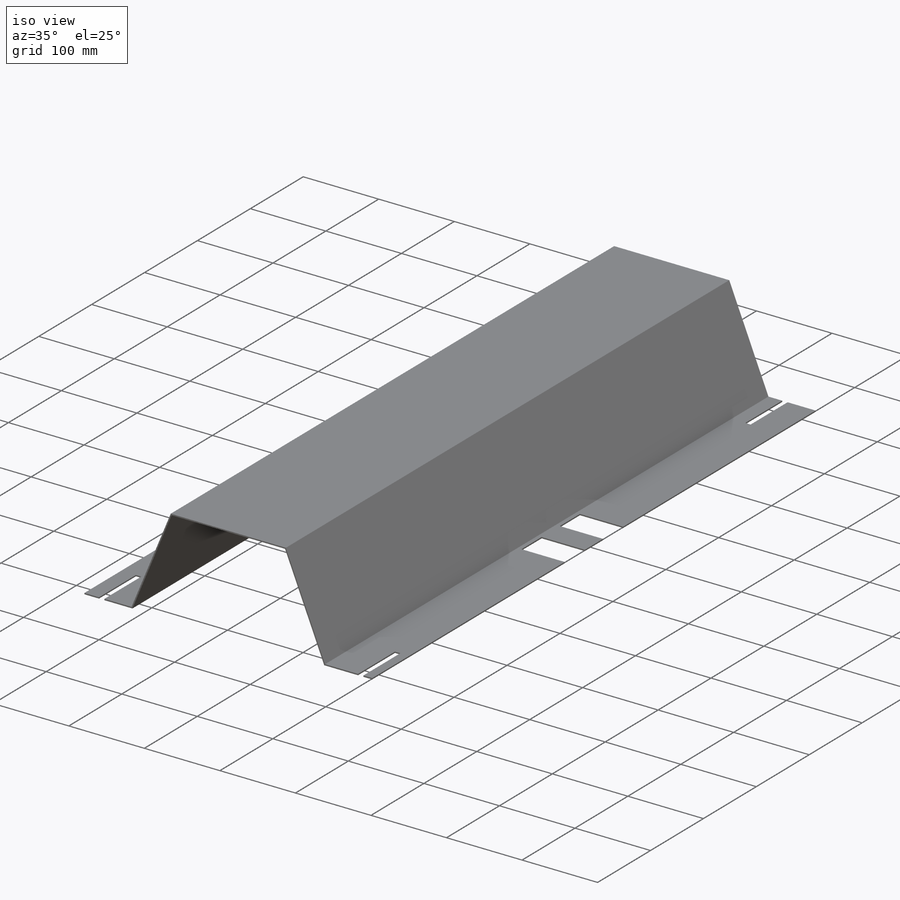
[diagram: iso view]
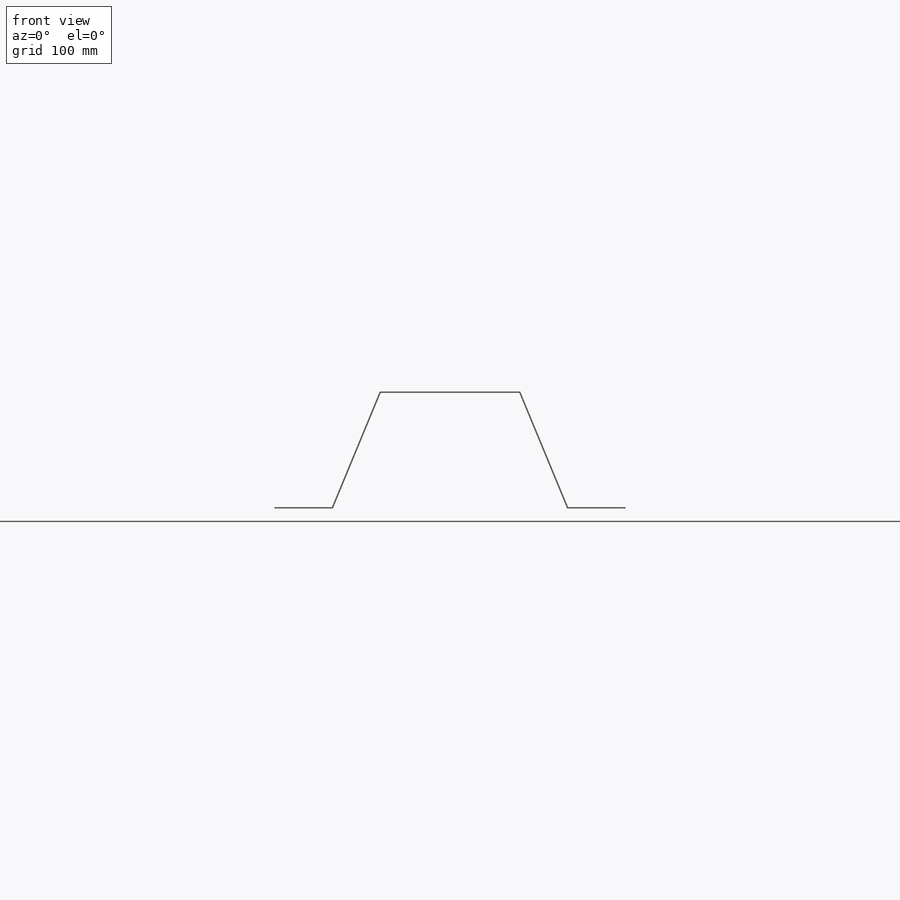
[diagram: front view]
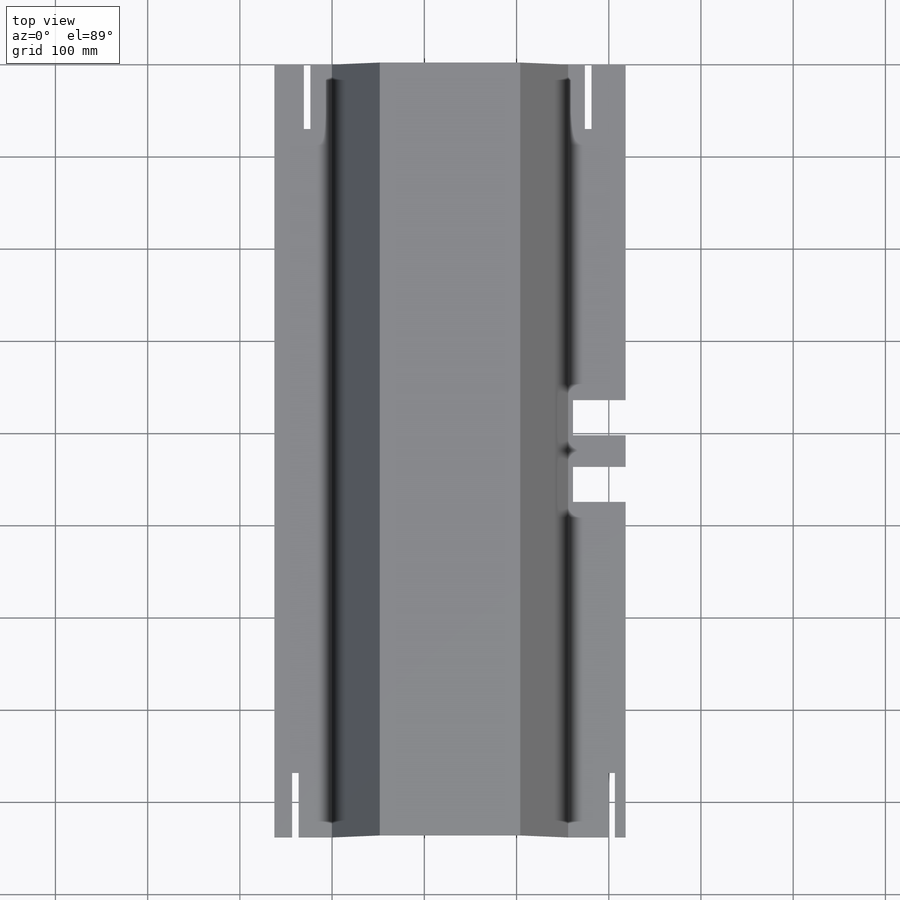
[diagram: top view]
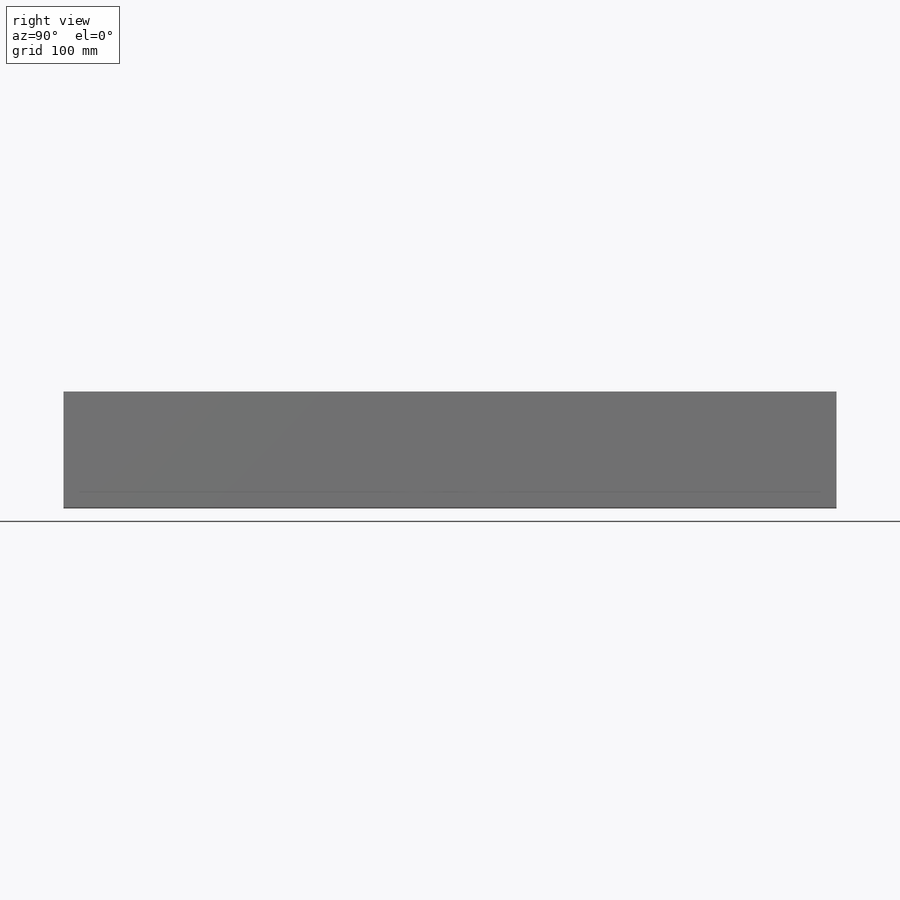
[diagram: right view]
SOLIDWORKS PART (.sldprt)
format: sldprt  version: not decoded by parser v0  size: 238,080 bytes
history: native  units: mm
features: sketch x3, cut_extrude x2, material x1, extrude x1 + 1 further entry (+10 scaffold rows collapsed)
feature tree (18):
  scaffold x10  (default folders/planes/origin — collapsed)
  material  "6061-T6 (SS)"
  "Origin"  ID=392984584
  sketch  "Sketch1"  dims[c1.D1=1.6002mm c1.D2=330.2mm c1.D3=~42.692819mm c2.D3=~151.290304deg c3.D3=177.8mm c3.D1=1.6002mm c3.D2=1.6002mm c4.D3=254.0mm c4.D4=152.4mm c4.D5=1.6002mm c4.D6=1.6002mm c5.D5=1.6002mm c5.D6=~0.765699mm c5.D7=~0.765699mm c5.D1=1.6002mm c6.D5=1.6002mm c6.D6=1.6002mm c6.D7=63.5mm c6.D8=63.5mm c6.D9=127.0mm]
  extrude  "Boss-Extrude1"  Depth=838.2mm
  sketch  "Sketch4"  dims[D1=57.15mm D2=57.15mm D3=38.1mm D4=38.1mm D5=34.29mm]
  cut_extrude  "Cut-Extrude3"  Depth=2.54mm
  sketch  "Sketch5"  dims[c1.D10=~6.685248mm c1.D11=~7.640283mm c1.D8=~11.473088mm c1.D9=~14.34136mm c1.D1=723.9mm c1.D2=736.6mm c1.D3=304.8mm c1.D4=342.9mm c1.D5=35.56mm c1.D6=22.86mm c1.D7=50.8mm c2.D8=12.7mm c2.D9=12.7mm c2.D10=12.7mm c2.D11=12.7mm c2.D12=7.9375mm c2.D13=7.9375mm c2.D14=7.9375mm c2.D15=7.9375mm c2.D16=50.8mm c2.D17=50.8mm c2.D2=304.8mm c2.D3=50.8mm c2.D4=~65.055742mm c3.D3=50.8mm c3.D4=736.6mm c3.D7=342.9mm c3.D8=12.7mm c3.D9=12.7mm c3.D10=7.9375mm c3.D11=7.9375mm c3.D1=7.112mm c3.D2=69.85mm c4.D3=32.004mm c4.D4=69.85mm c4.D5=7.112mm c4.D6=297.688mm c4.D7=69.85mm c4.D8=69.85mm c4.D9=7.112mm c4.D10=7.112mm c4.D11=19.304mm c4.D12=335.788mm]
  cut_extrude  "Cut-Extrude4"  [1 undecoded]
decode coverage: 5 of 6 modeling features carry decoded parameters; 1 rows unclassified (native names shown)
note: ~ marks probable driven/reference dimensions
note: 1 parameter value undecoded
note: suppression state not decoded; provenance and decode notes live in map.json
